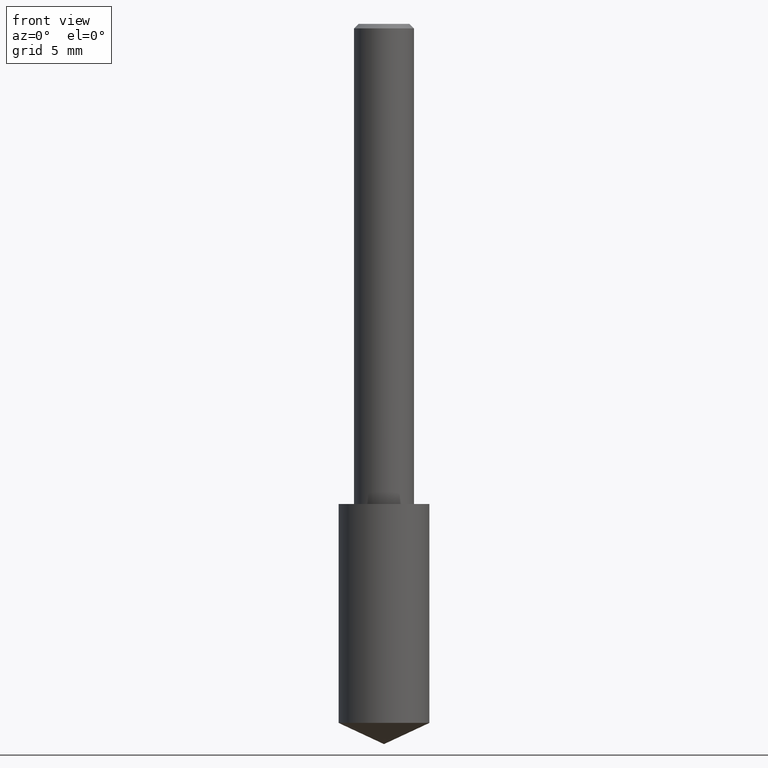
[diagram: clean part render]
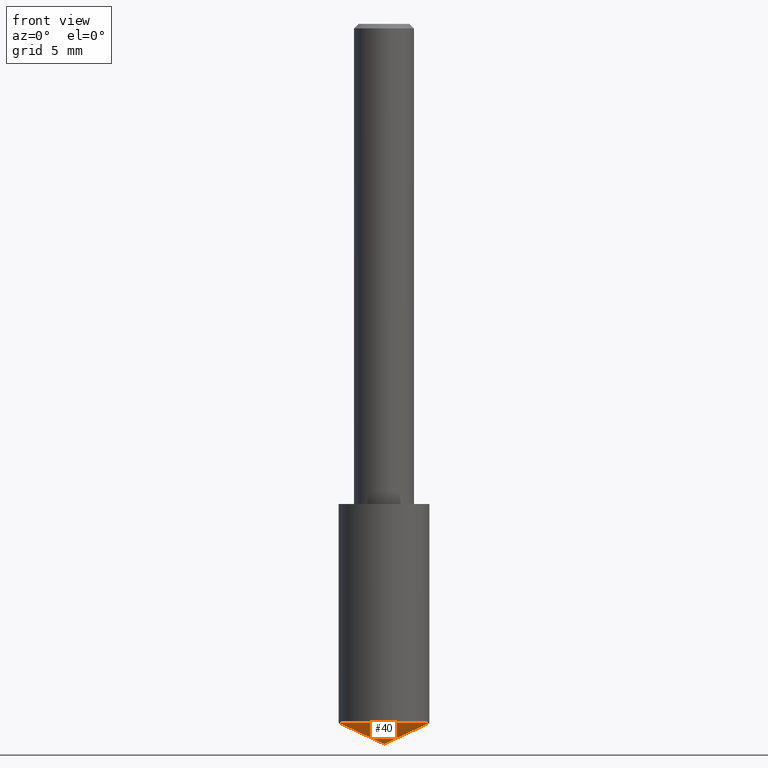
[diagram: same view with one face highlighted and labeled with its STEP entity id]
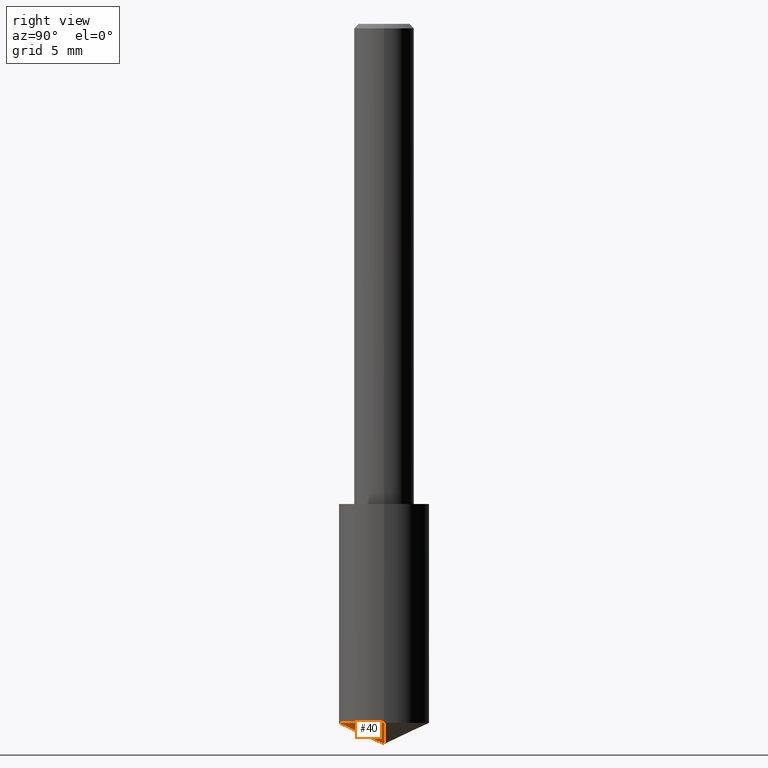
[diagram: same view with one face highlighted and labeled with its STEP entity id]
A machine part, front view. The second image highlights one B-rep face of the part: STEP entity #40.
A second angle (right view) of the same face is appended — the face is thin or edge-on in the first view.
In plain terms, the highlighted conical surface has half-angle 65 deg.
Its self-contained STEP definition (entity closure, byte-faithful):
#1 = CARTESIAN_POINT ( 'NONE',  ( -0.09450000000000001454, -4.411903248986985027E-15, -1.455933926304352921 ) ) ;
#15 = CARTESIAN_POINT ( 'NONE',  ( -9.261009624683002666E-28, 1.322226732217803884E-13, 37.87007874015748143 ) ) ;
#16 = EDGE_LOOP ( 'NONE', ( #276, #295, #267 ) ) ;
#17 = CARTESIAN_POINT ( 'NONE',  ( 3.668203209277704895E-29, -5.237222008264718177E-15, -1.500000000000000222 ) ) ;
#27 = CARTESIAN_POINT ( 'NONE',  ( 3.668203209277704895E-29, -5.237222008264718177E-15, -1.500000000000000222 ) ) ;
#40 = ADVANCED_FACE ( 'NONE', ( #254 ), #213, .T. ) ;
#62 = AXIS2_PLACEMENT_3D ( 'NONE', #15, #226, #336 ) ;
#81 = VERTEX_POINT ( 'NONE', #1 ) ;
#139 = VERTEX_POINT ( 'NONE', #292 ) ;
#140 = VECTOR ( 'NONE', #202, 39.37007874015748143 ) ;
#160 = CARTESIAN_POINT ( 'NONE',  ( 3.668203209277704895E-29, -5.237222008264718177E-15, -1.500000000000000222 ) ) ;
#166 = EDGE_CURVE ( 'NONE', #303, #139, #289, .T. ) ;
#167 = AXIS2_PLACEMENT_3D ( 'NONE', #286, #179, #318 ) ;
#179 = DIRECTION ( 'NONE',  ( -2.445468806185136597E-29, 3.491481338843145583E-15, 1.000000000000000000 ) ) ;
#202 = DIRECTION ( 'NONE',  ( 0.9063077870366507138, -4.853149677051390623E-15, 0.4226182617406978315 ) ) ;
#213 = CONICAL_SURFACE ( 'NONE', #62, 84.42940631927434936, 1.134464013796316006 ) ;
#215 = EDGE_CURVE ( 'NONE', #81, #139, #322, .T. ) ;
#226 = DIRECTION ( 'NONE',  ( -2.445468806185136597E-29, 3.491481338843145583E-15, 1.000000000000000000 ) ) ;
#241 = DIRECTION ( 'NONE',  ( -0.9063077870366507138, 7.915267918739014631E-15, 0.4226182617406978315 ) ) ;
#254 = FACE_OUTER_BOUND ( 'NONE', #16, .T. ) ;
#267 = ORIENTED_EDGE ( 'NONE', *, *, #215, .F. ) ;
#276 = ORIENTED_EDGE ( 'NONE', *, *, #290, .F. ) ;
#280 = LINE ( 'NONE', #160, #306 ) ;
#286 = CARTESIAN_POINT ( 'NONE',  ( 3.560441000643944495E-29, -5.083366134280279905E-15, -1.455933926304352921 ) ) ;
#289 = LINE ( 'NONE', #17, #140 ) ;
#290 = EDGE_CURVE ( 'NONE', #303, #81, #280, .T. ) ;
#292 = CARTESIAN_POINT ( 'NONE',  ( 0.09450000000000001454, -5.743256107321631920E-15, -1.455933926304352921 ) ) ;
#295 = ORIENTED_EDGE ( 'NONE', *, *, #166, .T. ) ;
#303 = VERTEX_POINT ( 'NONE', #27 ) ;
#306 = VECTOR ( 'NONE', #241, 39.37007874015748143 ) ;
#318 = DIRECTION ( 'NONE',  ( 1.000000000000000000, -6.982962677686266711E-15, 0.000000000000000000 ) ) ;
#322 = CIRCLE ( 'NONE', #167, 0.09449999999999998679 ) ;
#336 = DIRECTION ( 'NONE',  ( 1.000000000000000000, -6.982962677686266711E-15, 0.000000000000000000 ) ) ;